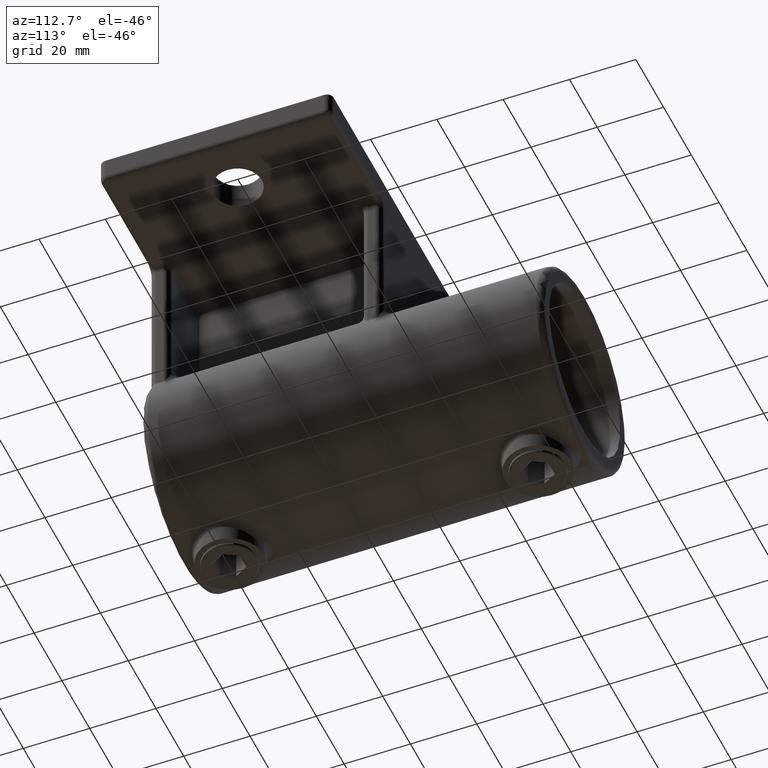
[diagram: clean part render]
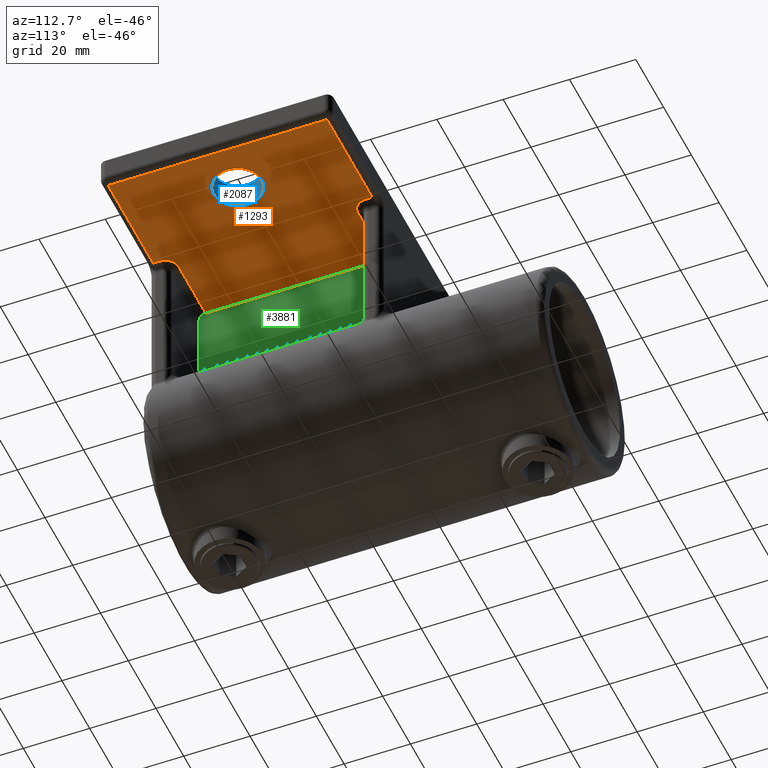
[diagram: same view with three faces highlighted in distinct colors, each labeled with its STEP entity id]
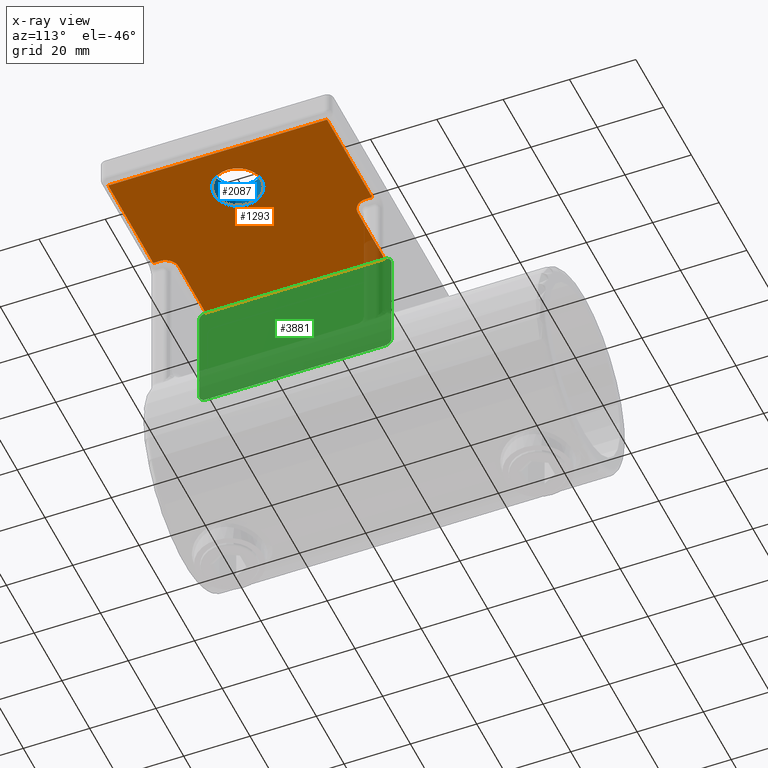
[diagram: x-ray of the same camera — body ghosted, the three highlighted faces saturated]
A machine part, auxiliary view with three faces highlighted in distinct colors.
The next image is the same camera in x-ray (body ghosted, the three faces saturated) — at least one of them is partly hidden behind the body in this view.
Their STEP definitions:

[orange] entity #1293 — the highlighted planar face has unit normal (0, 0, 1).
#70 = LINE ( 'NONE', #3117, #1828 ) ;
#73 = CARTESIAN_POINT ( 'NONE',  ( 2.999999999999993339, -27.00000000000000711, 0.000000000000000000 ) ) ;
#85 = EDGE_CURVE ( 'NONE', #780, #307, #70, .T. ) ;
#131 = CARTESIAN_POINT ( 'NONE',  ( 22.50000000000000355, -27.00000000000000711, 0.000000000000000000 ) ) ;
#205 = CARTESIAN_POINT ( 'NONE',  ( 58.99999999999999289, 0.000000000000000000, 0.000000000000000000 ) ) ;
#255 = DIRECTION ( 'NONE',  ( -0.000000000000000000, 1.000000000000000000, -0.000000000000000000 ) ) ;
#273 = VERTEX_POINT ( 'NONE', #865 ) ;
#304 = CARTESIAN_POINT ( 'NONE',  ( 22.50000000000000000, 31.00000000000000355, 0.000000000000000000 ) ) ;
#307 = VERTEX_POINT ( 'NONE', #2419 ) ;
#325 = EDGE_LOOP ( 'NONE', ( #1825 ) ) ;
#369 = CARTESIAN_POINT ( 'NONE',  ( 0.000000000000000000, 0.000000000000000000, 0.000000000000000000 ) ) ;
#413 = CIRCLE ( 'NONE', #2844, 4.000000000000000000 ) ;
#430 = ORIENTED_EDGE ( 'NONE', *, *, #2436, .F. ) ;
#442 = ORIENTED_EDGE ( 'NONE', *, *, #2258, .T. ) ;
#499 = CARTESIAN_POINT ( 'NONE',  ( 22.50000000000000000, 27.00000000000000711, 0.000000000000000000 ) ) ;
#516 = ORIENTED_EDGE ( 'NONE', *, *, #2772, .T. ) ;
#518 = ORIENTED_EDGE ( 'NONE', *, *, #85, .F. ) ;
#531 = EDGE_CURVE ( 'NONE', #273, #4598, #2244, .T. ) ;
#616 = EDGE_CURVE ( 'NONE', #2172, #2857, #4869, .T. ) ;
#619 = CARTESIAN_POINT ( 'NONE',  ( 26.50000000000000000, -31.00000000000000355, 0.000000000000000000 ) ) ;
#697 = EDGE_CURVE ( 'NONE', #1814, #1814, #4635, .T. ) ;
#712 = DIRECTION ( 'NONE',  ( 1.000000000000000000, 0.000000000000000000, 0.000000000000000000 ) ) ;
#729 = AXIS2_PLACEMENT_3D ( 'NONE', #369, #3076, #712 ) ;
#780 = VERTEX_POINT ( 'NONE', #3764 ) ;
#811 = EDGE_CURVE ( 'NONE', #273, #3347, #413, .T. ) ;
#865 = CARTESIAN_POINT ( 'NONE',  ( 26.50000000000000000, 31.00000000000000355, 0.000000000000000000 ) ) ;
#898 = VERTEX_POINT ( 'NONE', #131 ) ;
#936 = ORIENTED_EDGE ( 'NONE', *, *, #811, .F. ) ;
#1005 = VECTOR ( 'NONE', #2753, 1000.000000000000000 ) ;
#1029 = DIRECTION ( 'NONE',  ( 1.000000000000000000, -0.000000000000000000, 0.000000000000000000 ) ) ;
#1122 = VERTEX_POINT ( 'NONE', #619 ) ;
#1143 = VECTOR ( 'NONE', #4335, 1000.000000000000000 ) ;
#1279 = CARTESIAN_POINT ( 'NONE',  ( 24.50000000000000000, 27.00000000000000711, 0.000000000000000000 ) ) ;
#1293 = ADVANCED_FACE ( 'NONE', ( #4019, #1813 ), #4204, .F. ) ;
#1468 = AXIS2_PLACEMENT_3D ( 'NONE', #3460, #3388, #2613 ) ;
#1798 = LINE ( 'NONE', #2449, #1143 ) ;
#1809 = VECTOR ( 'NONE', #2588, 1000.000000000000000 ) ;
#1813 = FACE_OUTER_BOUND ( 'NONE', #2224, .T. ) ;
#1814 = VERTEX_POINT ( 'NONE', #2822 ) ;
#1825 = ORIENTED_EDGE ( 'NONE', *, *, #697, .T. ) ;
#1828 = VECTOR ( 'NONE', #3065, 1000.000000000000000 ) ;
#1892 = DIRECTION ( 'NONE',  ( 0.000000000000000000, -0.000000000000000000, -1.000000000000000000 ) ) ;
#1975 = DIRECTION ( 'NONE',  ( -1.000000000000000000, 0.000000000000000000, -0.000000000000000000 ) ) ;
#2172 = VERTEX_POINT ( 'NONE', #3823 ) ;
#2224 = EDGE_LOOP ( 'NONE', ( #430, #442, #518, #516, #936, #4262, #2817, #2241, #2939, #2458 ) ) ;
#2241 = ORIENTED_EDGE ( 'NONE', *, *, #616, .T. ) ;
#2244 = LINE ( 'NONE', #4475, #3015 ) ;
#2258 = EDGE_CURVE ( 'NONE', #898, #307, #4547, .T. ) ;
#2259 = CARTESIAN_POINT ( 'NONE',  ( 0.000000000000000000, -33.00000000000000000, 0.000000000000000000 ) ) ;
#2303 = LINE ( 'NONE', #4049, #4279 ) ;
#2411 = EDGE_CURVE ( 'NONE', #3724, #1122, #1798, .T. ) ;
#2413 = CARTESIAN_POINT ( 'NONE',  ( 22.50000000000000355, -31.00000000000000355, 0.000000000000000000 ) ) ;
#2419 = CARTESIAN_POINT ( 'NONE',  ( 2.999999999999993339, -27.00000000000000355, 0.000000000000000000 ) ) ;
#2436 = EDGE_CURVE ( 'NONE', #898, #1122, #2504, .T. ) ;
#2449 = CARTESIAN_POINT ( 'NONE',  ( 26.50000000000000000, -29.00000000000000355, 0.000000000000000000 ) ) ;
#2458 = ORIENTED_EDGE ( 'NONE', *, *, #2411, .T. ) ;
#2504 = CIRCLE ( 'NONE', #3212, 4.000000000000000000 ) ;
#2588 = DIRECTION ( 'NONE',  ( -1.000000000000000000, -0.000000000000000000, -0.000000000000000000 ) ) ;
#2613 = DIRECTION ( 'NONE',  ( 1.000000000000000000, 0.000000000000000000, 0.000000000000000000 ) ) ;
#2724 = VECTOR ( 'NONE', #3729, 1000.000000000000000 ) ;
#2753 = DIRECTION ( 'NONE',  ( 1.000000000000000000, -0.000000000000000000, -0.000000000000000000 ) ) ;
#2772 = EDGE_CURVE ( 'NONE', #780, #3347, #3174, .T. ) ;
#2804 = DIRECTION ( 'NONE',  ( 0.000000000000000000, -0.000000000000000000, -1.000000000000000000 ) ) ;
#2817 = ORIENTED_EDGE ( 'NONE', *, *, #4065, .T. ) ;
#2822 = CARTESIAN_POINT ( 'NONE',  ( 51.75000000000000000, 0.000000000000000000, 0.000000000000000000 ) ) ;
#2844 = AXIS2_PLACEMENT_3D ( 'NONE', #304, #1892, #4971 ) ;
#2857 = VERTEX_POINT ( 'NONE', #4797 ) ;
#2939 = ORIENTED_EDGE ( 'NONE', *, *, #3476, .T. ) ;
#3015 = VECTOR ( 'NONE', #255, 1000.000000000000000 ) ;
#3065 = DIRECTION ( 'NONE',  ( -1.196361017915039239E-16, -1.000000000000000000, -0.000000000000000000 ) ) ;
#3076 = DIRECTION ( 'NONE',  ( -0.000000000000000000, 0.000000000000000000, 1.000000000000000000 ) ) ;
#3117 = CARTESIAN_POINT ( 'NONE',  ( 3.000000000000000000, 29.00000000000000355, 0.000000000000000000 ) ) ;
#3174 = LINE ( 'NONE', #1279, #1005 ) ;
#3212 = AXIS2_PLACEMENT_3D ( 'NONE', #2413, #2804, #4347 ) ;
#3347 = VERTEX_POINT ( 'NONE', #499 ) ;
#3385 = CARTESIAN_POINT ( 'NONE',  ( 26.50000000000000000, 33.00000000000000000, 0.000000000000000000 ) ) ;
#3388 = DIRECTION ( 'NONE',  ( 0.000000000000000000, 0.000000000000000000, 1.000000000000000000 ) ) ;
#3460 = CARTESIAN_POINT ( 'NONE',  ( 44.50000000000000000, 0.000000000000000000, 0.000000000000000000 ) ) ;
#3476 = EDGE_CURVE ( 'NONE', #2857, #3724, #4131, .T. ) ;
#3724 = VERTEX_POINT ( 'NONE', #4305 ) ;
#3729 = DIRECTION ( 'NONE',  ( -0.000000000000000000, -1.000000000000000000, -0.000000000000000000 ) ) ;
#3764 = CARTESIAN_POINT ( 'NONE',  ( 2.999999999999999556, 27.00000000000000711, 0.000000000000000000 ) ) ;
#3823 = CARTESIAN_POINT ( 'NONE',  ( 58.99999999999999289, 33.00000000000000000, 0.000000000000000000 ) ) ;
#3892 = VECTOR ( 'NONE', #1975, 1000.000000000000000 ) ;
#4019 = FACE_BOUND ( 'NONE', #325, .T. ) ;
#4049 = CARTESIAN_POINT ( 'NONE',  ( 0.000000000000000000, 33.00000000000000000, 0.000000000000000000 ) ) ;
#4065 = EDGE_CURVE ( 'NONE', #4598, #2172, #2303, .T. ) ;
#4131 = LINE ( 'NONE', #2259, #1809 ) ;
#4204 = PLANE ( 'NONE',  #729 ) ;
#4262 = ORIENTED_EDGE ( 'NONE', *, *, #531, .T. ) ;
#4279 = VECTOR ( 'NONE', #1029, 1000.000000000000000 ) ;
#4305 = CARTESIAN_POINT ( 'NONE',  ( 26.50000000000000000, -33.00000000000000000, 0.000000000000000000 ) ) ;
#4335 = DIRECTION ( 'NONE',  ( -0.000000000000000000, 1.000000000000000000, -0.000000000000000000 ) ) ;
#4347 = DIRECTION ( 'NONE',  ( 1.000000000000000000, 0.000000000000000000, 0.000000000000000000 ) ) ;
#4475 = CARTESIAN_POINT ( 'NONE',  ( 26.50000000000000000, 35.00000000000000000, 0.000000000000000000 ) ) ;
#4547 = LINE ( 'NONE', #73, #3892 ) ;
#4598 = VERTEX_POINT ( 'NONE', #3385 ) ;
#4635 = CIRCLE ( 'NONE', #1468, 7.249999999999999112 ) ;
#4797 = CARTESIAN_POINT ( 'NONE',  ( 58.99999999999999289, -33.00000000000000000, 0.000000000000000000 ) ) ;
#4869 = LINE ( 'NONE', #205, #2724 ) ;
#4971 = DIRECTION ( 'NONE',  ( 1.000000000000000000, 0.000000000000000000, 0.000000000000000000 ) ) ;

[blue] entity #2087 — the highlighted cylindrical surface (bore or boss wall) has radius 7.25 mm, axis along (-0, -0, -1).
#72 = ORIENTED_EDGE ( 'NONE', *, *, #3882, .T. ) ;
#338 = FACE_OUTER_BOUND ( 'NONE', #2447, .T. ) ;
#356 = CIRCLE ( 'NONE', #493, 7.249999999999999112 ) ;
#493 = AXIS2_PLACEMENT_3D ( 'NONE', #992, #4085, #2156 ) ;
#697 = EDGE_CURVE ( 'NONE', #1814, #1814, #4635, .T. ) ;
#793 = EDGE_LOOP ( 'NONE', ( #1526 ) ) ;
#862 = CARTESIAN_POINT ( 'NONE',  ( 44.50000000000000000, 0.000000000000000000, 8.000000000000000000 ) ) ;
#992 = CARTESIAN_POINT ( 'NONE',  ( 44.50000000000000000, 0.000000000000000000, 8.000000000000000000 ) ) ;
#1013 = FACE_OUTER_BOUND ( 'NONE', #793, .T. ) ;
#1468 = AXIS2_PLACEMENT_3D ( 'NONE', #3460, #3388, #2613 ) ;
#1526 = ORIENTED_EDGE ( 'NONE', *, *, #697, .F. ) ;
#1718 = DIRECTION ( 'NONE',  ( -0.000000000000000000, -0.000000000000000000, -1.000000000000000000 ) ) ;
#1804 = CYLINDRICAL_SURFACE ( 'NONE', #2151, 7.249999999999999112 ) ;
#1814 = VERTEX_POINT ( 'NONE', #2822 ) ;
#2087 = ADVANCED_FACE ( 'NONE', ( #338, #1013 ), #1804, .F. ) ;
#2151 = AXIS2_PLACEMENT_3D ( 'NONE', #862, #1718, #4028 ) ;
#2156 = DIRECTION ( 'NONE',  ( 1.000000000000000000, 0.000000000000000000, 0.000000000000000000 ) ) ;
#2447 = EDGE_LOOP ( 'NONE', ( #72 ) ) ;
#2613 = DIRECTION ( 'NONE',  ( 1.000000000000000000, 0.000000000000000000, 0.000000000000000000 ) ) ;
#2822 = CARTESIAN_POINT ( 'NONE',  ( 51.75000000000000000, 0.000000000000000000, 0.000000000000000000 ) ) ;
#3388 = DIRECTION ( 'NONE',  ( 0.000000000000000000, 0.000000000000000000, 1.000000000000000000 ) ) ;
#3460 = CARTESIAN_POINT ( 'NONE',  ( 44.50000000000000000, 0.000000000000000000, 0.000000000000000000 ) ) ;
#3882 = EDGE_CURVE ( 'NONE', #4863, #4863, #356, .T. ) ;
#3997 = CARTESIAN_POINT ( 'NONE',  ( 51.75000000000000000, 0.000000000000000000, 8.000000000000000000 ) ) ;
#4028 = DIRECTION ( 'NONE',  ( -1.000000000000000000, 0.000000000000000000, 0.000000000000000000 ) ) ;
#4085 = DIRECTION ( 'NONE',  ( 0.000000000000000000, 0.000000000000000000, 1.000000000000000000 ) ) ;
#4635 = CIRCLE ( 'NONE', #1468, 7.249999999999999112 ) ;
#4863 = VERTEX_POINT ( 'NONE', #3997 ) ;

[green] entity #3881 — the highlighted planar face has unit normal (-1, 0, 0).
#13 = ORIENTED_EDGE ( 'NONE', *, *, #834, .T. ) ;
#31 = CARTESIAN_POINT ( 'NONE',  ( 2.999999999999993783, -28.79835683515795708, -33.52754829268591408 ) ) ;
#70 = LINE ( 'NONE', #3117, #1828 ) ;
#85 = EDGE_CURVE ( 'NONE', #780, #307, #70, .T. ) ;
#160 = EDGE_CURVE ( 'NONE', #1962, #4528, #2500, .T. ) ;
#227 = DIRECTION ( 'NONE',  ( 1.000000000000000000, -1.196361017915039239E-16, -0.000000000000000000 ) ) ;
#266 = VECTOR ( 'NONE', #4766, 1000.000000000000000 ) ;
#307 = VERTEX_POINT ( 'NONE', #2419 ) ;
#355 = LINE ( 'NONE', #4983, #476 ) ;
#476 = VECTOR ( 'NONE', #781, 1000.000000000000000 ) ;
#488 = CARTESIAN_POINT ( 'NONE',  ( 2.999999999999993339, -28.50835070748940936, -33.96446209930757476 ) ) ;
#538 = CARTESIAN_POINT ( 'NONE',  ( 2.999999999999993339, -29.00000000000000355, -500000.0000000000582 ) ) ;
#617 = ORIENTED_EDGE ( 'NONE', *, *, #1676, .T. ) ;
#750 = DIRECTION ( 'NONE',  ( -0.000000000000000000, -0.000000000000000000, 1.000000000000000000 ) ) ;
#762 = VERTEX_POINT ( 'NONE', #2249 ) ;
#780 = VERTEX_POINT ( 'NONE', #3764 ) ;
#781 = DIRECTION ( 'NONE',  ( 0.000000000000000000, 1.000000000000000000, 0.000000000000000000 ) ) ;
#802 = CARTESIAN_POINT ( 'NONE',  ( 3.000000000000000000, 29.00000000000000355, -32.63875774956659370 ) ) ;
#817 = CARTESIAN_POINT ( 'NONE',  ( 2.999999999999993339, -29.00000000000000355, -32.63875774956659370 ) ) ;
#834 = EDGE_CURVE ( 'NONE', #4528, #4066, #355, .T. ) ;
#845 = CARTESIAN_POINT ( 'NONE',  ( 3.000000000000000444, 27.88800090368244256, -34.44376489916713524 ) ) ;
#847 = CARTESIAN_POINT ( 'NONE',  ( 2.999999999999993783, -28.32418318887239295, -34.15003166440607174 ) ) ;
#887 = CARTESIAN_POINT ( 'NONE',  ( 3.000000000000000444, 27.26248533582055344, -34.63482695717920024 ) ) ;
#1125 = CARTESIAN_POINT ( 'NONE',  ( 3.000000000000000000, 29.00000000000000355, -500000.0000000000582 ) ) ;
#1165 = EDGE_CURVE ( 'NONE', #1796, #780, #1382, .T. ) ;
#1284 = B_SPLINE_CURVE_WITH_KNOTS ( 'NONE', 3,
 ( #3175, #3155, #887, #2818, #4695, #845, #1669, #4340, #4721, #2432, #2375, #4294, #2023, #4674 ),
 .UNSPECIFIED., .F., .F.,
 ( 4, 2, 2, 2, 2, 2, 4 ),
 ( 0.000000000000000000, 0.0003914235171237064959, 0.0007828470342474129918, 0.001174270551371119596, 0.001565694068494825984, 0.002348541102742261310, 0.003131388136989696636 ),
 .UNSPECIFIED. ) ;
#1382 = CIRCLE ( 'NONE', #3205, 1.999999999999998224 ) ;
#1424 = DIRECTION ( 'NONE',  ( -1.000000000000000000, 1.196361017915039239E-16, 0.000000000000000000 ) ) ;
#1500 = DIRECTION ( 'NONE',  ( 1.000000000000000000, -1.196361017915039239E-16, -0.000000000000000000 ) ) ;
#1509 = ORIENTED_EDGE ( 'NONE', *, *, #2149, .T. ) ;
#1607 = CARTESIAN_POINT ( 'NONE',  ( 2.999999999999992895, -27.88884444167949539, -34.44328626859038422 ) ) ;
#1658 = CARTESIAN_POINT ( 'NONE',  ( 2.999999999999993339, -28.22367526939133953, -34.23333245532191427 ) ) ;
#1669 = CARTESIAN_POINT ( 'NONE',  ( 3.000000000000000444, 28.00290877069472018, -34.38192250254953564 ) ) ;
#1676 = EDGE_CURVE ( 'NONE', #307, #762, #2581, .T. ) ;
#1687 = DIRECTION ( 'NONE',  ( -1.196361017915039239E-16, -1.000000000000000000, 0.000000000000000000 ) ) ;
#1763 = FACE_OUTER_BOUND ( 'NONE', #1783, .T. ) ;
#1783 = EDGE_LOOP ( 'NONE', ( #1509, #2101, #2867, #617, #2108, #2284, #13, #3894 ) ) ;
#1796 = VERTEX_POINT ( 'NONE', #2020 ) ;
#1828 = VECTOR ( 'NONE', #3065, 1000.000000000000000 ) ;
#1962 = VERTEX_POINT ( 'NONE', #817 ) ;
#2020 = CARTESIAN_POINT ( 'NONE',  ( 3.000000000000000000, 29.00000000000000355, -2.000000000123236532 ) ) ;
#2023 = CARTESIAN_POINT ( 'NONE',  ( 3.000000000000000000, 29.00000000000013856, -32.90343801912819544 ) ) ;
#2050 = CARTESIAN_POINT ( 'NONE',  ( 2.999999999999993339, -28.73717251207237311, -33.64280501494605602 ) ) ;
#2089 = EDGE_CURVE ( 'NONE', #1962, #762, #3838, .T. ) ;
#2101 = ORIENTED_EDGE ( 'NONE', *, *, #1165, .T. ) ;
#2108 = ORIENTED_EDGE ( 'NONE', *, *, #2089, .F. ) ;
#2149 = EDGE_CURVE ( 'NONE', #4733, #1796, #2762, .T. ) ;
#2249 = CARTESIAN_POINT ( 'NONE',  ( 2.999999999999993339, -29.00000000000000355, -2.000000000123236532 ) ) ;
#2284 = ORIENTED_EDGE ( 'NONE', *, *, #160, .T. ) ;
#2317 = CARTESIAN_POINT ( 'NONE',  ( 2.999999999999993339, -28.98710175051758142, -32.90126435828798890 ) ) ;
#2375 = CARTESIAN_POINT ( 'NONE',  ( 3.000000000000000444, 28.74814104859223463, -33.64897466075551336 ) ) ;
#2387 = PLANE ( 'NONE',  #4884 ) ;
#2419 = CARTESIAN_POINT ( 'NONE',  ( 2.999999999999993339, -27.00000000000000355, 0.000000000000000000 ) ) ;
#2432 = CARTESIAN_POINT ( 'NONE',  ( 2.999999999999999556, 28.59949198611387544, -33.87289045725376724 ) ) ;
#2500 = B_SPLINE_CURVE_WITH_KNOTS ( 'NONE', 3,
 ( #3803, #3821, #2317, #4618, #3484, #31, #2050, #3156, #488, #847, #1658, #2750, #1607, #3561, #3136, #4266 ),
 .UNSPECIFIED., .F., .F.,
 ( 4, 2, 2, 2, 2, 2, 2, 4 ),
 ( 1.344663500127864330E-13, 0.0003914245368458762640, 0.0007828490735572861967, 0.001174273610268696238, 0.001565698146980106171, 0.001957122683691516103, 0.002348547220402925819, 0.003131396293825745684 ),
 .UNSPECIFIED. ) ;
#2581 = CIRCLE ( 'NONE', #4590, 1.999999999999998224 ) ;
#2639 = DIRECTION ( 'NONE',  ( -2.168404344971010840E-16, -1.000000000000000000, 0.000000000000000000 ) ) ;
#2750 = CARTESIAN_POINT ( 'NONE',  ( 2.999999999999993783, -28.00541203714431049, -34.38051677415504059 ) ) ;
#2762 = LINE ( 'NONE', #1125, #2927 ) ;
#2818 = CARTESIAN_POINT ( 'NONE',  ( 3.000000000000000444, 27.51846954631254505, -34.58362058446653720 ) ) ;
#2867 = ORIENTED_EDGE ( 'NONE', *, *, #85, .T. ) ;
#2927 = VECTOR ( 'NONE', #750, 1000.000000000000000 ) ;
#2928 = DIRECTION ( 'NONE',  ( -2.168404344971010840E-16, -1.000000000000000000, 1.734723475976808672E-15 ) ) ;
#2982 = CARTESIAN_POINT ( 'NONE',  ( 2.999999999999999556, 27.00000000000000711, -2.000000000009549694 ) ) ;
#3065 = DIRECTION ( 'NONE',  ( -1.196361017915039239E-16, -1.000000000000000000, -0.000000000000000000 ) ) ;
#3117 = CARTESIAN_POINT ( 'NONE',  ( 3.000000000000000000, 29.00000000000000355, 0.000000000000000000 ) ) ;
#3136 = CARTESIAN_POINT ( 'NONE',  ( 2.999999999999993339, -27.26473520888536584, -34.64789957844761403 ) ) ;
#3155 = CARTESIAN_POINT ( 'NONE',  ( 2.999999999999992895, 27.13235699243935528, -34.64789957844763535 ) ) ;
#3156 = CARTESIAN_POINT ( 'NONE',  ( 2.999999999999993783, -28.59259118780041575, -33.86100713127993345 ) ) ;
#3175 = CARTESIAN_POINT ( 'NONE',  ( 2.999999999999991562, 27.00000000000001066, -34.64789957844763535 ) ) ;
#3205 = AXIS2_PLACEMENT_3D ( 'NONE', #2982, #227, #2928 ) ;
#3450 = CARTESIAN_POINT ( 'NONE',  ( 2.999999999999993339, -27.00000000000000711, -2.000000000009549694 ) ) ;
#3484 = CARTESIAN_POINT ( 'NONE',  ( 2.999999999999993339, -28.89831802610118316, -33.28461556518305997 ) ) ;
#3561 = CARTESIAN_POINT ( 'NONE',  ( 2.999999999999993339, -27.52772660678310146, -34.59430282170850290 ) ) ;
#3764 = CARTESIAN_POINT ( 'NONE',  ( 2.999999999999999556, 27.00000000000000711, 0.000000000000000000 ) ) ;
#3803 = CARTESIAN_POINT ( 'NONE',  ( 2.999999999999993339, -29.00000000000000355, -32.63875774956659370 ) ) ;
#3821 = CARTESIAN_POINT ( 'NONE',  ( 2.999999999989335198, -29.00000000000000000, -32.77110860744893728 ) ) ;
#3838 = LINE ( 'NONE', #538, #266 ) ;
#3854 = EDGE_CURVE ( 'NONE', #4066, #4733, #1284, .T. ) ;
#3881 = ADVANCED_FACE ( 'NONE', ( #1763 ), #2387, .F. ) ;
#3894 = ORIENTED_EDGE ( 'NONE', *, *, #3854, .T. ) ;
#4038 = CARTESIAN_POINT ( 'NONE',  ( 2.999999999999991562, -27.00000000000000711, -34.64789957844763535 ) ) ;
#4066 = VERTEX_POINT ( 'NONE', #4510 ) ;
#4266 = CARTESIAN_POINT ( 'NONE',  ( 2.999999999999991562, -27.00000000000000711, -34.64789957844763535 ) ) ;
#4294 = CARTESIAN_POINT ( 'NONE',  ( 3.000000000000000444, 28.94716983150150469, -33.16649985882087037 ) ) ;
#4340 = CARTESIAN_POINT ( 'NONE',  ( 3.000000000000000444, 28.22032697864514361, -34.23586518241982191 ) ) ;
#4478 = CARTESIAN_POINT ( 'NONE',  ( 3.000000000000000000, 29.00000000000000355, -500000.0000000000582 ) ) ;
#4510 = CARTESIAN_POINT ( 'NONE',  ( 2.999999999999991562, 27.00000000000001066, -34.64789957844763535 ) ) ;
#4528 = VERTEX_POINT ( 'NONE', #4038 ) ;
#4590 = AXIS2_PLACEMENT_3D ( 'NONE', #3450, #1500, #2639 ) ;
#4618 = CARTESIAN_POINT ( 'NONE',  ( 2.999999999999992895, -28.93656025575614876, -33.15736459665461666 ) ) ;
#4674 = CARTESIAN_POINT ( 'NONE',  ( 3.000000000000000000, 29.00000000000000355, -32.63875774956659370 ) ) ;
#4695 = CARTESIAN_POINT ( 'NONE',  ( 3.000000000000000444, 27.64566433109279231, -34.54485463627054287 ) ) ;
#4721 = CARTESIAN_POINT ( 'NONE',  ( 3.000000000000000444, 28.32314508919470342, -34.15094484195221014 ) ) ;
#4733 = VERTEX_POINT ( 'NONE', #802 ) ;
#4766 = DIRECTION ( 'NONE',  ( -0.000000000000000000, -0.000000000000000000, 1.000000000000000000 ) ) ;
#4884 = AXIS2_PLACEMENT_3D ( 'NONE', #4478, #1424, #1687 ) ;
#4983 = CARTESIAN_POINT ( 'NONE',  ( 2.999999999999991562, -35.00000000000000000, -34.64789957844763535 ) ) ;